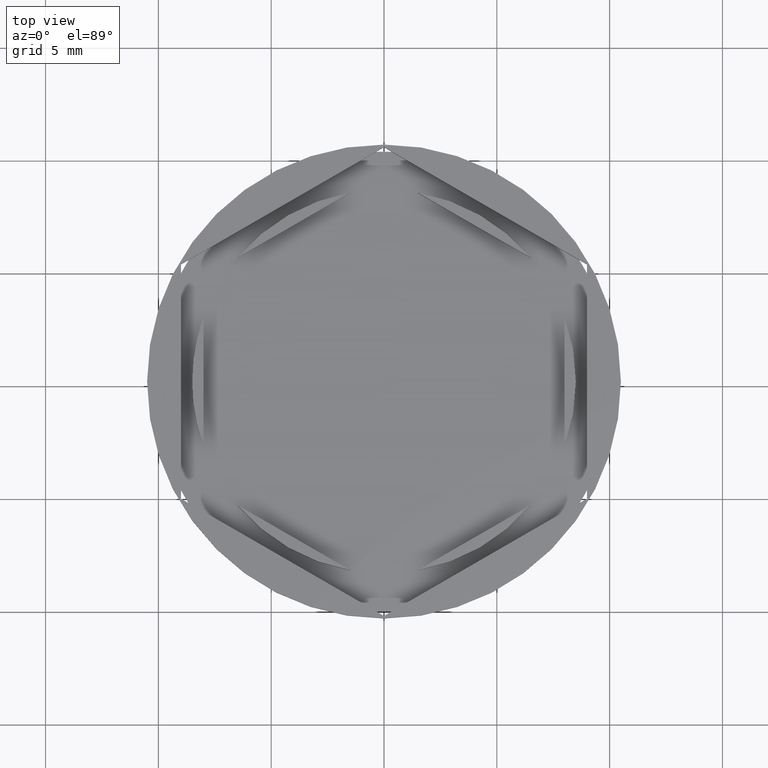
[diagram: clean part render]
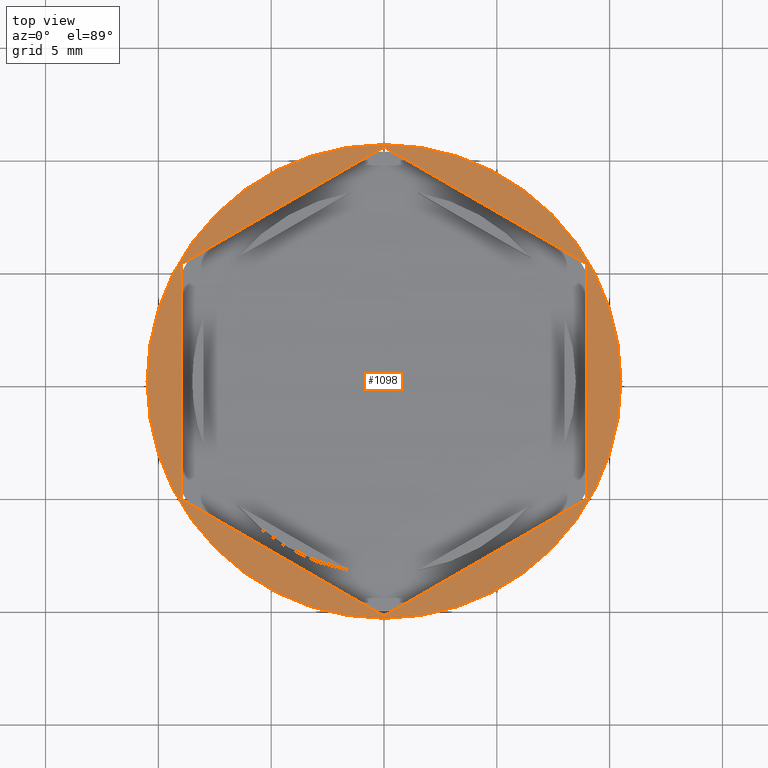
[diagram: same view with one face highlighted and labeled with its STEP entity id]
A machine part, top view. The second image highlights one B-rep face of the part: STEP entity #1098.
In plain terms, the highlighted planar face has unit normal (0, -0, 1).
Its self-contained STEP definition (entity closure, byte-faithful):
#36 = CARTESIAN_POINT ( 'NONE',  ( 9.000000000000001776, -5.196152422706633800, 0.000000000000000000 ) ) ;
#43 = EDGE_CURVE ( 'NONE', #358, #1607, #1757, .T. ) ;
#47 = VERTEX_POINT ( 'NONE', #810 ) ;
#68 = DIRECTION ( 'NONE',  ( 0.000000000000000000, -1.000000000000000000, 0.000000000000000000 ) ) ;
#197 = CARTESIAN_POINT ( 'NONE',  ( 8.334195073742550113E-16, -10.39230484541326582, 0.000000000000000000 ) ) ;
#265 = VECTOR ( 'NONE', #337, 1000.000000000000000 ) ;
#337 = DIRECTION ( 'NONE',  ( 0.000000000000000000, 1.000000000000000000, 0.000000000000000000 ) ) ;
#349 = FACE_BOUND ( 'NONE', #861, .T. ) ;
#358 = VERTEX_POINT ( 'NONE', #1596 ) ;
#393 = DIRECTION ( 'NONE',  ( -0.8660254037844385966, -0.5000000000000002220, 0.000000000000000000 ) ) ;
#404 = EDGE_CURVE ( 'NONE', #47, #2097, #759, .T. ) ;
#417 = EDGE_CURVE ( 'NONE', #1053, #2142, #900, .T. ) ;
#442 = DIRECTION ( 'NONE',  ( 0.8660254037844387076, -0.4999999999999999445, 0.000000000000000000 ) ) ;
#560 = LINE ( 'NONE', #1885, #2047 ) ;
#565 = ORIENTED_EDGE ( 'NONE', *, *, #1086, .F. ) ;
#573 = CARTESIAN_POINT ( 'NONE',  ( -9.000000000000003553, 5.196152422706628471, 0.000000000000000000 ) ) ;
#629 = DIRECTION ( 'NONE',  ( -0.000000000000000000, -0.000000000000000000, 1.000000000000000000 ) ) ;
#657 = LINE ( 'NONE', #1013, #265 ) ;
#674 = LINE ( 'NONE', #197, #1694 ) ;
#681 = VECTOR ( 'NONE', #914, 1000.000000000000114 ) ;
#696 = VERTEX_POINT ( 'NONE', #36 ) ;
#707 = DIRECTION ( 'NONE',  ( 1.000000000000000000, 0.000000000000000000, 0.000000000000000000 ) ) ;
#742 = AXIS2_PLACEMENT_3D ( 'NONE', #2000, #1514, #1186 ) ;
#759 = LINE ( 'NONE', #1078, #681 ) ;
#797 = LINE ( 'NONE', #1762, #1870 ) ;
#807 = ORIENTED_EDGE ( 'NONE', *, *, #1222, .T. ) ;
#810 = CARTESIAN_POINT ( 'NONE',  ( 9.000000000000001776, 5.196152422706633800, 0.000000000000000000 ) ) ;
#834 = ORIENTED_EDGE ( 'NONE', *, *, #404, .F. ) ;
#836 = ORIENTED_EDGE ( 'NONE', *, *, #1328, .F. ) ;
#845 = ORIENTED_EDGE ( 'NONE', *, *, #1535, .F. ) ;
#853 = PLANE ( 'NONE',  #742 ) ;
#861 = EDGE_LOOP ( 'NONE', ( #834, #845, #565, #955, #2138, #836 ) ) ;
#870 = FACE_OUTER_BOUND ( 'NONE', #1660, .T. ) ;
#874 = ORIENTED_EDGE ( 'NONE', *, *, #43, .T. ) ;
#878 = CARTESIAN_POINT ( 'NONE',  ( 0.000000000000000000, 0.000000000000000000, 0.000000000000000000 ) ) ;
#900 = LINE ( 'NONE', #573, #1528 ) ;
#914 = DIRECTION ( 'NONE',  ( -0.8660254037844387076, 0.4999999999999997780, 0.000000000000000000 ) ) ;
#937 = CARTESIAN_POINT ( 'NONE',  ( 8.334195073742550113E-16, -10.39230484541326582, 0.000000000000000000 ) ) ;
#955 = ORIENTED_EDGE ( 'NONE', *, *, #1767, .F. ) ;
#1013 = CARTESIAN_POINT ( 'NONE',  ( 9.000000000000001776, -5.196152422706633800, 0.000000000000000000 ) ) ;
#1053 = VERTEX_POINT ( 'NONE', #1681 ) ;
#1078 = CARTESIAN_POINT ( 'NONE',  ( 9.000000000000001776, 5.196152422706633800, 0.000000000000000000 ) ) ;
#1086 = EDGE_CURVE ( 'NONE', #1359, #696, #674, .T. ) ;
#1093 = AXIS2_PLACEMENT_3D ( 'NONE', #878, #1545, #707 ) ;
#1098 = ADVANCED_FACE ( 'NONE', ( #349, #870 ), #853, .T. ) ;
#1116 = CARTESIAN_POINT ( 'NONE',  ( 0.000000000000000000, 10.39230484541326405, 0.000000000000000000 ) ) ;
#1186 = DIRECTION ( 'NONE',  ( 1.000000000000000000, 0.000000000000000000, 0.000000000000000000 ) ) ;
#1214 = CARTESIAN_POINT ( 'NONE',  ( 10.50000000000000000, 0.000000000000000000, 0.000000000000000000 ) ) ;
#1222 = EDGE_CURVE ( 'NONE', #1607, #358, #2042, .T. ) ;
#1274 = AXIS2_PLACEMENT_3D ( 'NONE', #1465, #629, #1633 ) ;
#1328 = EDGE_CURVE ( 'NONE', #2097, #1053, #560, .T. ) ;
#1359 = VERTEX_POINT ( 'NONE', #937 ) ;
#1465 = CARTESIAN_POINT ( 'NONE',  ( 0.000000000000000000, 0.000000000000000000, 0.000000000000000000 ) ) ;
#1514 = DIRECTION ( 'NONE',  ( 0.000000000000000000, -0.000000000000000000, 1.000000000000000000 ) ) ;
#1528 = VECTOR ( 'NONE', #68, 1000.000000000000000 ) ;
#1535 = EDGE_CURVE ( 'NONE', #696, #47, #657, .T. ) ;
#1545 = DIRECTION ( 'NONE',  ( -0.000000000000000000, -0.000000000000000000, 1.000000000000000000 ) ) ;
#1596 = CARTESIAN_POINT ( 'NONE',  ( -10.50000000000000000, 1.285879139104720831E-15, 0.000000000000000000 ) ) ;
#1607 = VERTEX_POINT ( 'NONE', #1214 ) ;
#1633 = DIRECTION ( 'NONE',  ( 1.000000000000000000, 0.000000000000000000, 0.000000000000000000 ) ) ;
#1660 = EDGE_LOOP ( 'NONE', ( #807, #874 ) ) ;
#1681 = CARTESIAN_POINT ( 'NONE',  ( -9.000000000000003553, 5.196152422706628471, 0.000000000000000000 ) ) ;
#1694 = VECTOR ( 'NONE', #2029, 1000.000000000000227 ) ;
#1757 = CIRCLE ( 'NONE', #1274, 10.50000000000000000 ) ;
#1762 = CARTESIAN_POINT ( 'NONE',  ( -9.000000000000003553, -5.196152422706632912, 0.000000000000000000 ) ) ;
#1767 = EDGE_CURVE ( 'NONE', #2142, #1359, #797, .T. ) ;
#1805 = CARTESIAN_POINT ( 'NONE',  ( -9.000000000000003553, -5.196152422706632912, 0.000000000000000000 ) ) ;
#1870 = VECTOR ( 'NONE', #442, 1000.000000000000000 ) ;
#1885 = CARTESIAN_POINT ( 'NONE',  ( 0.000000000000000000, 10.39230484541326405, 0.000000000000000000 ) ) ;
#2000 = CARTESIAN_POINT ( 'NONE',  ( 0.000000000000000000, 0.000000000000000000, 0.000000000000000000 ) ) ;
#2029 = DIRECTION ( 'NONE',  ( 0.8660254037844385966, 0.4999999999999998890, 0.000000000000000000 ) ) ;
#2042 = CIRCLE ( 'NONE', #1093, 10.50000000000000000 ) ;
#2047 = VECTOR ( 'NONE', #393, 999.9999999999998863 ) ;
#2097 = VERTEX_POINT ( 'NONE', #1116 ) ;
#2138 = ORIENTED_EDGE ( 'NONE', *, *, #417, .F. ) ;
#2142 = VERTEX_POINT ( 'NONE', #1805 ) ;